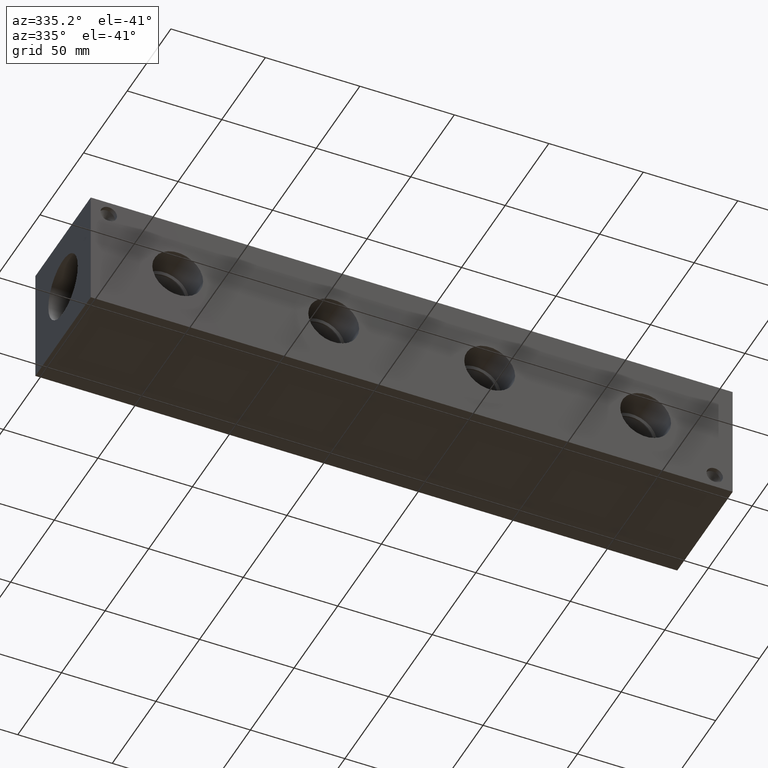
[diagram: clean part render]
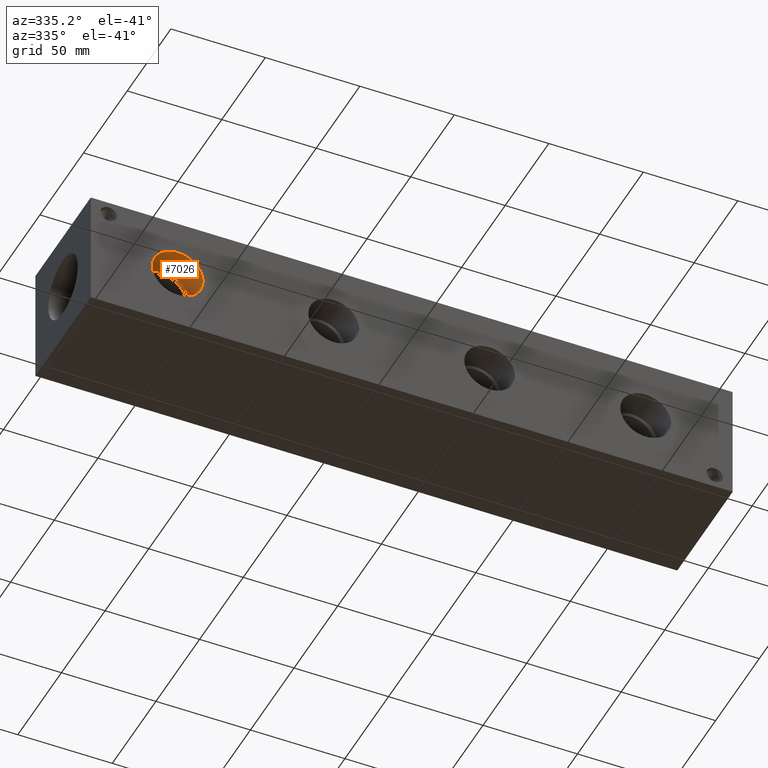
[diagram: same view with one face highlighted and labeled with its STEP entity id]
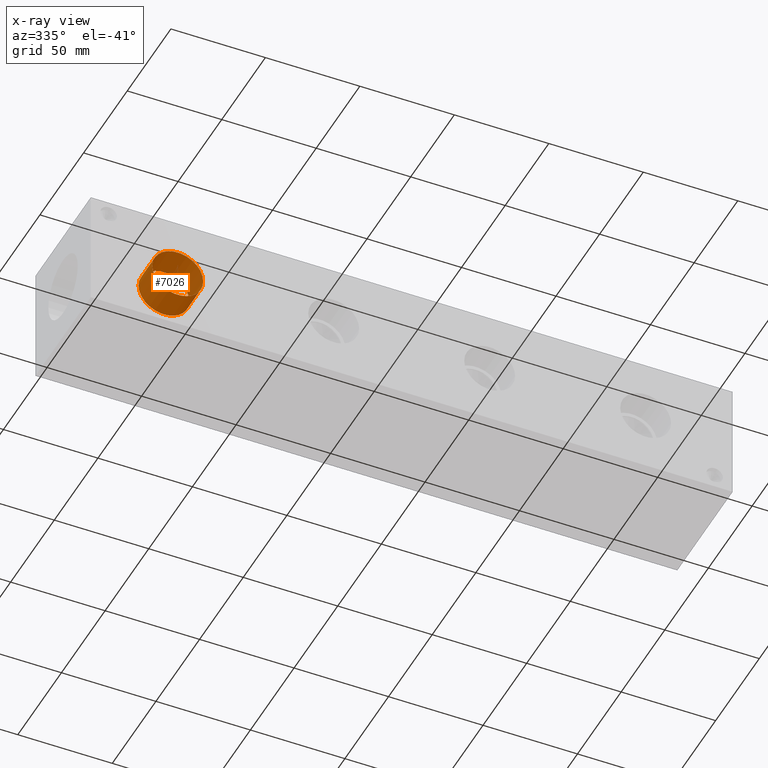
[diagram: x-ray of the same camera — body ghosted, the highlighted face saturated]
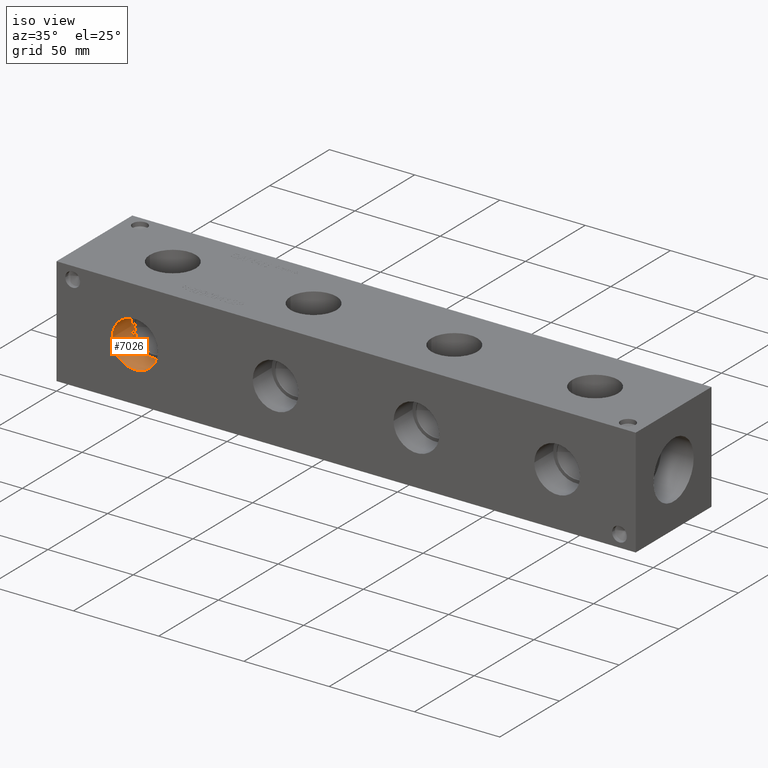
[diagram: same view with one face highlighted and labeled with its STEP entity id]
A machine part, auxiliary view. The second image highlights one B-rep face of the part: STEP entity #7026.
The next image is the same camera in x-ray: the body ghosted, the highlighted face saturated — about 0% of this face is hidden behind the body in this view.
A second angle (iso view) of the same face is appended — the face is thin or edge-on in the first view.
In plain terms, the highlighted cylindrical surface (bore or boss wall) has radius 13.462 mm, axis along (0, -1, 0).
Its self-contained STEP definition (entity closure, byte-faithful):
#16=CYLINDRICAL_SURFACE('',#7339,13.462);
#73=CIRCLE('',#7336,13.462);
#74=CIRCLE('',#7337,13.462);
#76=CIRCLE('',#7340,13.462);
#77=CIRCLE('',#7341,13.462);
#737=FACE_OUTER_BOUND('',#1131,.T.);
#1131=EDGE_LOOP('',(#6103,#6104,#6105,#6106,#6107,#6108));
#1865=LINE('',#11722,#2577);
#2577=VECTOR('',#8629,13.462);
#3364=VERTEX_POINT('',#11711);
#3365=VERTEX_POINT('',#11712);
#3367=VERTEX_POINT('',#11718);
#3368=VERTEX_POINT('',#11719);
#4302=EDGE_CURVE('',#3364,#3365,#73,.T.);
#4303=EDGE_CURVE('',#3365,#3364,#74,.T.);
#4305=EDGE_CURVE('',#3367,#3368,#76,.T.);
#4306=EDGE_CURVE('',#3368,#3367,#77,.T.);
#4307=EDGE_CURVE('',#3368,#3365,#1865,.T.);
#6103=ORIENTED_EDGE('',*,*,#4305,.F.);
#6104=ORIENTED_EDGE('',*,*,#4306,.F.);
#6105=ORIENTED_EDGE('',*,*,#4307,.T.);
#6106=ORIENTED_EDGE('',*,*,#4302,.F.);
#6107=ORIENTED_EDGE('',*,*,#4303,.F.);
#6108=ORIENTED_EDGE('',*,*,#4307,.F.);
#7026=ADVANCED_FACE('',(#737),#16,.F.);
#7336=AXIS2_PLACEMENT_3D('',#11713,#8617,#8618);
#7337=AXIS2_PLACEMENT_3D('',#11714,#8619,#8620);
#7339=AXIS2_PLACEMENT_3D('',#11717,#8623,#8624);
#7340=AXIS2_PLACEMENT_3D('',#11720,#8625,#8626);
#7341=AXIS2_PLACEMENT_3D('',#11721,#8627,#8628);
#8617=DIRECTION('center_axis',(0.,-1.,0.));
#8618=DIRECTION('ref_axis',(1.,0.,0.));
#8619=DIRECTION('center_axis',(0.,-1.,0.));
#8620=DIRECTION('ref_axis',(1.,0.,0.));
#8623=DIRECTION('center_axis',(0.,-1.,0.));
#8624=DIRECTION('ref_axis',(1.,0.,0.));
#8625=DIRECTION('center_axis',(0.,1.,0.));
#8626=DIRECTION('ref_axis',(1.,0.,0.));
#8627=DIRECTION('center_axis',(0.,1.,0.));
#8628=DIRECTION('ref_axis',(1.,0.,0.));
#8629=DIRECTION('',(0.,1.,0.));
#11711=CARTESIAN_POINT('',(59.4868,15.8496,31.75));
#11712=CARTESIAN_POINT('',(32.5628,15.8496,31.75));
#11713=CARTESIAN_POINT('Origin',(46.0248,15.8496,31.75));
#11714=CARTESIAN_POINT('Origin',(46.0248,15.8496,31.75));
#11717=CARTESIAN_POINT('Origin',(46.0248,7.9248,31.75));
#11718=CARTESIAN_POINT('',(59.4868,0.,31.75));
#11719=CARTESIAN_POINT('',(32.5628,1.11022302462516E-15,31.75));
#11720=CARTESIAN_POINT('Origin',(46.0248,0.,31.75));
#11721=CARTESIAN_POINT('Origin',(46.0248,0.,31.75));
#11722=CARTESIAN_POINT('',(32.5628,7.9248,31.75));